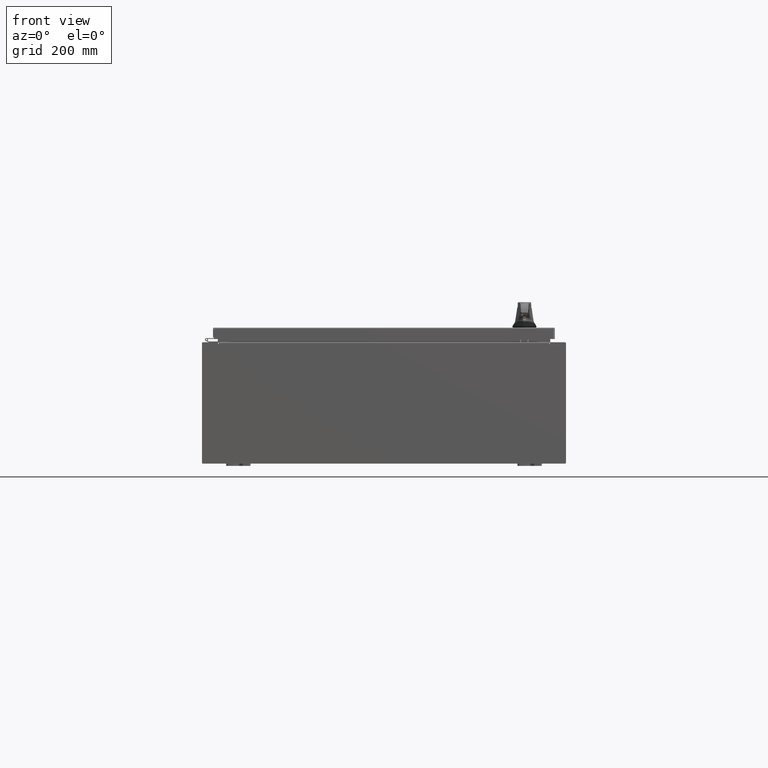
[diagram: clean part render]
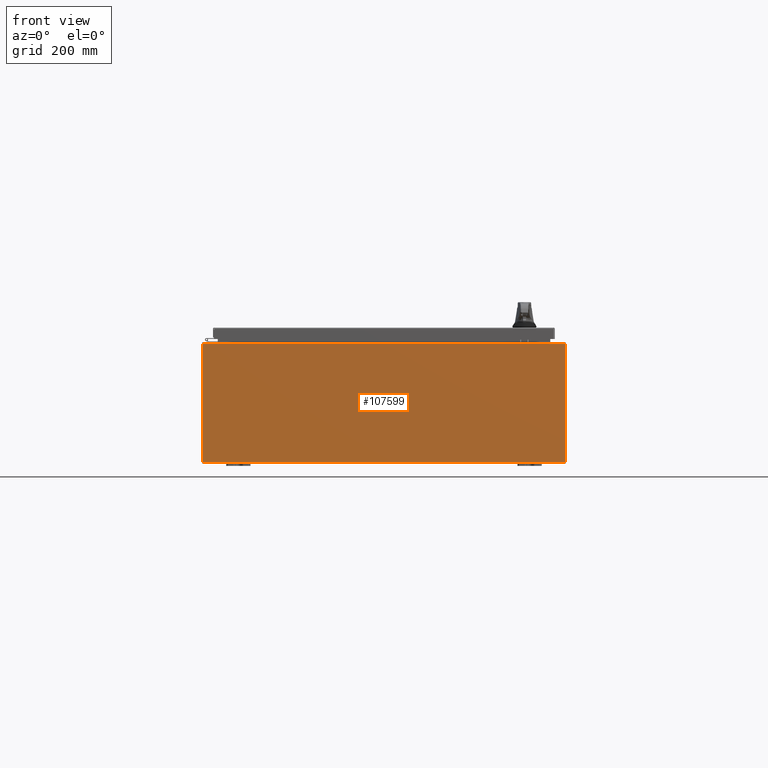
[diagram: same view with one face highlighted and labeled with its STEP entity id]
A machine part, front view. The second image highlights one B-rep face of the part: STEP entity #107599.
In plain terms, the highlighted planar face has unit normal (-0, 1, -0).
Its self-contained STEP definition (entity closure, byte-faithful):
#2363 = DIRECTION ( 'NONE',  ( 0.0000000000000000000, 0.0000000000000000000, 1.000000000000000000 ) ) ;
#5458 = CARTESIAN_POINT ( 'NONE',  ( -13.63720000000000000, -7.171100983368691200E-016, 4.912300000000000100 ) ) ;
#6686 = CARTESIAN_POINT ( 'NONE',  ( 13.67455000000000000, 0.0000000000000000000, 4.925300000000000000 ) ) ;
#7343 = EDGE_CURVE ( 'NONE', #12229, #13980, #118916, .T. ) ;
#8441 = FACE_OUTER_BOUND ( 'NONE', #88830, .T. ) ;
#11584 = CARTESIAN_POINT ( 'NONE',  ( -13.65587500000000000, 0.0000000000000000000, 4.874950000000000100 ) ) ;
#12229 = VERTEX_POINT ( 'NONE', #55601 ) ;
#13980 = VERTEX_POINT ( 'NONE', #78561 ) ;
#19066 = CARTESIAN_POINT ( 'NONE',  ( -14.92530000000000200, 0.0000000000000000000, -4.925300000000000000 ) ) ;
#20613 = DIRECTION ( 'NONE',  ( 0.0000000000000000000, -1.000000000000000000, 0.0000000000000000000 ) ) ;
#21077 = PLANE ( 'NONE',  #123831 ) ;
#22200 = LINE ( 'NONE', #26561, #80034 ) ;
#22619 = LINE ( 'NONE', #33272, #101428 ) ;
#23253 = LINE ( 'NONE', #37212, #102031 ) ;
#25935 = DIRECTION ( 'NONE',  ( 0.0000000000000000000, 0.0000000000000000000, -1.000000000000000000 ) ) ;
#26561 = CARTESIAN_POINT ( 'NONE',  ( 14.92529999999999800, 0.0000000000000000000, 4.925300000000000000 ) ) ;
#27008 = VERTEX_POINT ( 'NONE', #120328 ) ;
#27515 = ORIENTED_EDGE ( 'NONE', *, *, #77513, .F. ) ;
#27648 = CARTESIAN_POINT ( 'NONE',  ( 14.92529999999999800, 0.0000000000000000000, -4.925300000000000000 ) ) ;
#33272 = CARTESIAN_POINT ( 'NONE',  ( 13.63719999999999800, 0.0000000000000000000, 0.0000000000000000000 ) ) ;
#35211 = CARTESIAN_POINT ( 'NONE',  ( -13.67455000000000000, -0.0000000000000000000, 0.0000000000000000000 ) ) ;
#36969 = CARTESIAN_POINT ( 'NONE',  ( 13.67454999999999800, 0.0000000000000000000, 4.874950000000000100 ) ) ;
#37212 = CARTESIAN_POINT ( 'NONE',  ( -14.92530000000000200, 0.0000000000000000000, 4.925300000000000000 ) ) ;
#37330 = VECTOR ( 'NONE', #68011, 39.37007874015748100 ) ;
#39975 = LINE ( 'NONE', #56864, #64052 ) ;
#40017 = ORIENTED_EDGE ( 'NONE', *, *, #72281, .T. ) ;
#40811 = EDGE_CURVE ( 'NONE', #101311, #61442, #119438, .T. ) ;
#41661 = DIRECTION ( 'NONE',  ( 1.000000000000000000, 0.0000000000000000000, 0.0000000000000000000 ) ) ;
#44658 = EDGE_CURVE ( 'NONE', #46531, #94552, #77860, .T. ) ;
#45337 = CIRCLE ( 'NONE', #87191, 0.01867499999999949400 ) ;
#46531 = VERTEX_POINT ( 'NONE', #19066 ) ;
#46943 = AXIS2_PLACEMENT_3D ( 'NONE', #11584, #106815, #128135 ) ;
#48331 = CARTESIAN_POINT ( 'NONE',  ( 13.65587499999999800, 0.0000000000000000000, 4.874950000000000100 ) ) ;
#50042 = CARTESIAN_POINT ( 'NONE',  ( -14.92530000000000200, 0.0000000000000000000, 4.925300000000000000 ) ) ;
#50517 = VECTOR ( 'NONE', #67067, 39.37007874015748100 ) ;
#50950 = VERTEX_POINT ( 'NONE', #5458 ) ;
#51411 = VECTOR ( 'NONE', #54607, 39.37007874015748100 ) ;
#53147 = ORIENTED_EDGE ( 'NONE', *, *, #96732, .F. ) ;
#54607 = DIRECTION ( 'NONE',  ( 1.000000000000000000, 0.0000000000000000000, 0.0000000000000000000 ) ) ;
#54808 = CARTESIAN_POINT ( 'NONE',  ( 13.63719999999999800, 0.0000000000000000000, 4.874950000000000100 ) ) ;
#55601 = CARTESIAN_POINT ( 'NONE',  ( -13.63720000000000000, -0.0000000000000000000, 4.874950000000000100 ) ) ;
#56864 = CARTESIAN_POINT ( 'NONE',  ( -13.63720000000000000, -0.0000000000000000000, 0.0000000000000000000 ) ) ;
#58639 = DIRECTION ( 'NONE',  ( 0.0000000000000000000, 0.0000000000000000000, -1.000000000000000000 ) ) ;
#59353 = CARTESIAN_POINT ( 'NONE',  ( -14.92530000000000200, 0.0000000000000000000, 4.925300000000000000 ) ) ;
#61442 = VERTEX_POINT ( 'NONE', #36969 ) ;
#61885 = EDGE_CURVE ( 'NONE', #50950, #12229, #39975, .T. ) ;
#62698 = VECTOR ( 'NONE', #131706, 39.37007874015748100 ) ;
#64052 = VECTOR ( 'NONE', #25935, 39.37007874015748100 ) ;
#67067 = DIRECTION ( 'NONE',  ( -0.0000000000000000000, -0.0000000000000000000, 1.000000000000000000 ) ) ;
#67078 = ORIENTED_EDGE ( 'NONE', *, *, #44658, .T. ) ;
#68011 = DIRECTION ( 'NONE',  ( -4.340572780400004900E-014, 0.0000000000000000000, -1.000000000000000000 ) ) ;
#69011 = LINE ( 'NONE', #59353, #93219 ) ;
#69684 = DIRECTION ( 'NONE',  ( 1.000000000000000000, 0.0000000000000000000, 0.0000000000000000000 ) ) ;
#70136 = EDGE_CURVE ( 'NONE', #50950, #79085, #78748, .T. ) ;
#72187 = CARTESIAN_POINT ( 'NONE',  ( 0.0000000000000000000, 0.0000000000000000000, 0.0000000000000000000 ) ) ;
#72281 = EDGE_CURVE ( 'NONE', #27008, #97137, #22200, .T. ) ;
#73431 = LINE ( 'NONE', #35211, #97649 ) ;
#73866 = VERTEX_POINT ( 'NONE', #79497 ) ;
#74015 = ORIENTED_EDGE ( 'NONE', *, *, #128237, .F. ) ;
#77513 = EDGE_CURVE ( 'NONE', #13980, #73866, #73431, .T. ) ;
#77860 = LINE ( 'NONE', #128833, #50517 ) ;
#78561 = CARTESIAN_POINT ( 'NONE',  ( -13.67455000000000000, 0.0000000000000000000, 4.874950000000000100 ) ) ;
#78748 = LINE ( 'NONE', #126679, #51411 ) ;
#79085 = VERTEX_POINT ( 'NONE', #98536 ) ;
#79497 = CARTESIAN_POINT ( 'NONE',  ( -13.67455000000000000, 0.0000000000000000000, 4.925300000000000000 ) ) ;
#80026 = EDGE_CURVE ( 'NONE', #101311, #27008, #23253, .T. ) ;
#80034 = VECTOR ( 'NONE', #88115, 39.37007874015748100 ) ;
#83603 = ORIENTED_EDGE ( 'NONE', *, *, #70136, .T. ) ;
#86921 = LINE ( 'NONE', #121777, #62698 ) ;
#87191 = AXIS2_PLACEMENT_3D ( 'NONE', #48331, #120325, #58639 ) ;
#88115 = DIRECTION ( 'NONE',  ( 0.0000000000000000000, 0.0000000000000000000, -1.000000000000000000 ) ) ;
#88830 = EDGE_LOOP ( 'NONE', ( #27515, #118998, #119815, #83603, #53147, #74015, #123449, #121885, #40017, #122151, #67078, #133245 ) ) ;
#92947 = DIRECTION ( 'NONE',  ( 0.0000000000000000000, -0.0000000000000000000, -1.000000000000000000 ) ) ;
#93219 = VECTOR ( 'NONE', #69684, 39.37007874015748100 ) ;
#94552 = VERTEX_POINT ( 'NONE', #50042 ) ;
#96732 = EDGE_CURVE ( 'NONE', #115228, #79085, #22619, .T. ) ;
#96867 = DIRECTION ( 'NONE',  ( 0.0000000000000000000, 0.0000000000000000000, 1.000000000000000000 ) ) ;
#97137 = VERTEX_POINT ( 'NONE', #27648 ) ;
#97649 = VECTOR ( 'NONE', #96867, 39.37007874015748100 ) ;
#98536 = CARTESIAN_POINT ( 'NONE',  ( 13.63719999999999800, 0.0000000000000000000, 4.912300000000000100 ) ) ;
#101311 = VERTEX_POINT ( 'NONE', #6686 ) ;
#101428 = VECTOR ( 'NONE', #2363, 39.37007874015748100 ) ;
#102031 = VECTOR ( 'NONE', #41661, 39.37007874015748100 ) ;
#106815 = DIRECTION ( 'NONE',  ( -0.0000000000000000000, 1.000000000000000000, -0.0000000000000000000 ) ) ;
#107599 = ADVANCED_FACE ( 'NONE', ( #8441 ), #21077, .F. ) ;
#115228 = VERTEX_POINT ( 'NONE', #54808 ) ;
#116214 = EDGE_CURVE ( 'NONE', #94552, #73866, #69011, .T. ) ;
#118916 = CIRCLE ( 'NONE', #46943, 0.01867499999999949400 ) ;
#118998 = ORIENTED_EDGE ( 'NONE', *, *, #7343, .F. ) ;
#119438 = LINE ( 'NONE', #129744, #37330 ) ;
#119815 = ORIENTED_EDGE ( 'NONE', *, *, #61885, .F. ) ;
#120325 = DIRECTION ( 'NONE',  ( -0.0000000000000000000, 1.000000000000000000, -0.0000000000000000000 ) ) ;
#120328 = CARTESIAN_POINT ( 'NONE',  ( 14.92529999999999800, 0.0000000000000000000, 4.925300000000000000 ) ) ;
#121777 = CARTESIAN_POINT ( 'NONE',  ( -14.92530000000000200, 0.0000000000000000000, -4.925300000000000000 ) ) ;
#121885 = ORIENTED_EDGE ( 'NONE', *, *, #80026, .T. ) ;
#122151 = ORIENTED_EDGE ( 'NONE', *, *, #123850, .T. ) ;
#123449 = ORIENTED_EDGE ( 'NONE', *, *, #40811, .F. ) ;
#123831 = AXIS2_PLACEMENT_3D ( 'NONE', #72187, #20613, #92947 ) ;
#123850 = EDGE_CURVE ( 'NONE', #97137, #46531, #86921, .T. ) ;
#126679 = CARTESIAN_POINT ( 'NONE',  ( -13.63720000000000400, -7.171100983368691200E-016, 4.912300000000000100 ) ) ;
#128135 = DIRECTION ( 'NONE',  ( 0.0000000000000000000, 0.0000000000000000000, -1.000000000000000000 ) ) ;
#128237 = EDGE_CURVE ( 'NONE', #61442, #115228, #45337, .T. ) ;
#128833 = CARTESIAN_POINT ( 'NONE',  ( -14.92530000000000200, 0.0000000000000000000, 4.925300000000000000 ) ) ;
#129744 = CARTESIAN_POINT ( 'NONE',  ( 13.67454999999978500, -0.0000000000000000000, -5.935537951421795000E-013 ) ) ;
#131706 = DIRECTION ( 'NONE',  ( -1.000000000000000000, -0.0000000000000000000, -0.0000000000000000000 ) ) ;
#133245 = ORIENTED_EDGE ( 'NONE', *, *, #116214, .T. ) ;